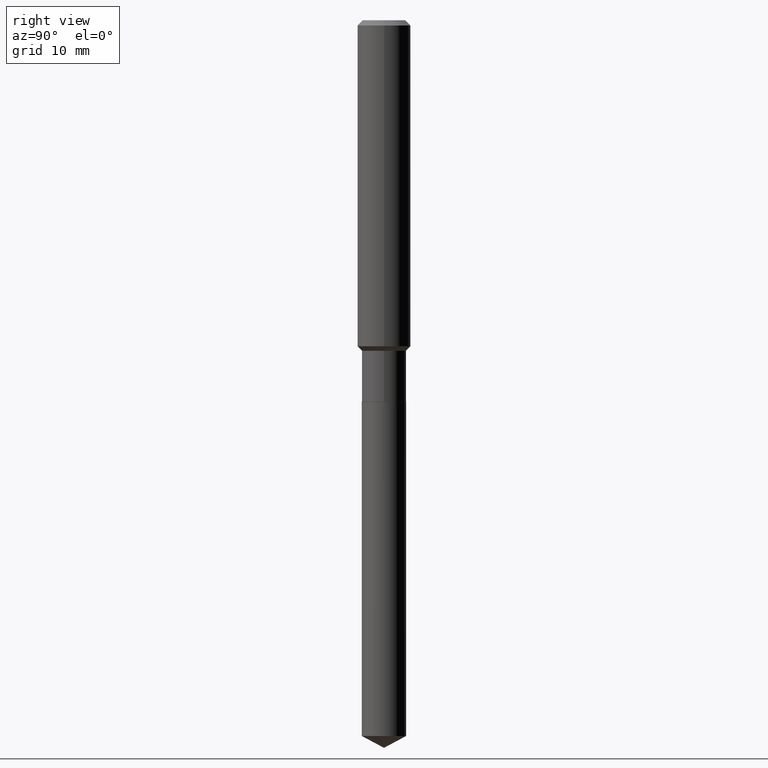
[diagram: clean part render]
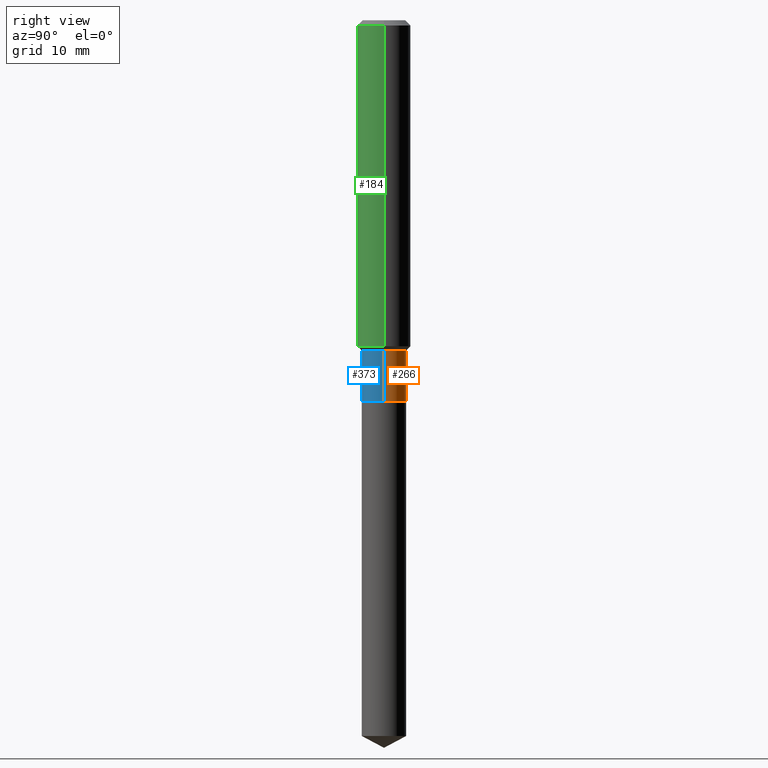
[diagram: same view with three faces highlighted in distinct colors, each labeled with its STEP entity id]
A machine part, right view with three faces highlighted in distinct colors.
Their STEP definitions:

[orange] entity #266 — the highlighted cylindrical surface (edge-blend (fillet) strip) has radius 2.5006 mm, axis along (-0, 0, 1).
#11 = EDGE_CURVE ( 'NONE', #194, #166, #454, .T. ) ;
#23 = AXIS2_PLACEMENT_3D ( 'NONE', #419, #306, #451 ) ;
#37 = EDGE_CURVE ( 'NONE', #194, #151, #369, .T. ) ;
#50 = CYLINDRICAL_SURFACE ( 'NONE', #478, 0.09844999999999998197 ) ;
#56 = DIRECTION ( 'NONE',  ( -2.445468806185136597E-29, 3.491481338843145583E-15, 1.000000000000000000 ) ) ;
#93 = ORIENTED_EDGE ( 'NONE', *, *, #11, .T. ) ;
#120 = CARTESIAN_POINT ( 'NONE',  ( -0.09844999999999999585, -4.815090877279988422E-15, -1.692400000000000126 ) ) ;
#127 = EDGE_CURVE ( 'NONE', #151, #400, #448, .T. ) ;
#138 = VECTOR ( 'NONE', #272, 39.37007874015748143 ) ;
#151 = VERTEX_POINT ( 'NONE', #458 ) ;
#161 = LINE ( 'NONE', #307, #138 ) ;
#166 = VERTEX_POINT ( 'NONE', #120 ) ;
#189 = DIRECTION ( 'NONE',  ( -2.445468806185136597E-29, 3.491481338843145583E-15, 1.000000000000000000 ) ) ;
#194 = VERTEX_POINT ( 'NONE', #197 ) ;
#197 = CARTESIAN_POINT ( 'NONE',  ( 0.09844999999999999585, -6.596455693476352920E-15, -1.692400000000000126 ) ) ;
#234 = FACE_OUTER_BOUND ( 'NONE', #278, .T. ) ;
#242 = DIRECTION ( 'NONE',  ( 1.000000000000000000, -6.982962677686266711E-15, 4.876176775795935793E-29 ) ) ;
#255 = CARTESIAN_POINT ( 'NONE',  ( 0.09844999999999998197, -6.874726756182128559E-16, 4.800596035771097813E-30 ) ) ;
#260 = EDGE_CURVE ( 'NONE', #166, #400, #161, .T. ) ;
#266 = ADVANCED_FACE ( 'NONE', ( #234 ), #50, .T. ) ;
#272 = DIRECTION ( 'NONE',  ( -2.445468806185136877E-29, 3.491481338843145188E-15, 1.000000000000000000 ) ) ;
#276 = CARTESIAN_POINT ( 'NONE',  ( -0.09844999999999995421, -4.815090877279988422E-15, -1.466500000000000137 ) ) ;
#278 = EDGE_LOOP ( 'NONE', ( #93, #435, #416, #398 ) ) ;
#294 = CARTESIAN_POINT ( 'NONE',  ( 4.138711407587726116E-29, -5.908983017858140360E-15, -1.692400000000000126 ) ) ;
#306 = DIRECTION ( 'NONE',  ( -2.445468806185136597E-29, 3.491481338843145583E-15, 1.000000000000000000 ) ) ;
#307 = CARTESIAN_POINT ( 'NONE',  ( -0.09844999999999998197, 6.995293233558185049E-16, -4.842691596355953341E-30 ) ) ;
#369 = LINE ( 'NONE', #255, #426 ) ;
#391 = CARTESIAN_POINT ( 'NONE',  ( 0.000000000000000000, 0.000000000000000000, 0.000000000000000000 ) ) ;
#398 = ORIENTED_EDGE ( 'NONE', *, *, #37, .F. ) ;
#400 = VERTEX_POINT ( 'NONE', #276 ) ;
#401 = AXIS2_PLACEMENT_3D ( 'NONE', #294, #189, #408 ) ;
#408 = DIRECTION ( 'NONE',  ( 1.000000000000000000, -6.982962677686265922E-15, 0.000000000000000000 ) ) ;
#416 = ORIENTED_EDGE ( 'NONE', *, *, #127, .F. ) ;
#419 = CARTESIAN_POINT ( 'NONE',  ( 3.586280004270503451E-29, -5.120257383413473493E-15, -1.466500000000000137 ) ) ;
#426 = VECTOR ( 'NONE', #484, 39.37007874015748143 ) ;
#435 = ORIENTED_EDGE ( 'NONE', *, *, #260, .T. ) ;
#448 = CIRCLE ( 'NONE', #23, 0.09844999999999995421 ) ;
#451 = DIRECTION ( 'NONE',  ( 1.000000000000000000, -6.982962677686269077E-15, 0.000000000000000000 ) ) ;
#454 = CIRCLE ( 'NONE', #401, 0.09844999999999999585 ) ;
#458 = CARTESIAN_POINT ( 'NONE',  ( 0.09844999999999995421, -5.807730059031686053E-15, -1.466500000000000137 ) ) ;
#478 = AXIS2_PLACEMENT_3D ( 'NONE', #391, #56, #242 ) ;
#484 = DIRECTION ( 'NONE',  ( -2.445468806185136877E-29, 3.491481338843145188E-15, 1.000000000000000000 ) ) ;

[blue] entity #373 — the highlighted cylindrical surface (edge-blend (fillet) strip) has radius 2.5006 mm, axis along (-0, 0, 1).
#14 = CYLINDRICAL_SURFACE ( 'NONE', #368, 0.09844999999999998197 ) ;
#22 = CIRCLE ( 'NONE', #247, 0.09844999999999999585 ) ;
#25 = DIRECTION ( 'NONE',  ( 1.000000000000000000, -6.982962677686269077E-15, 0.000000000000000000 ) ) ;
#28 = DIRECTION ( 'NONE',  ( -2.445468806185136597E-29, 3.491481338843145583E-15, 1.000000000000000000 ) ) ;
#36 = EDGE_LOOP ( 'NONE', ( #275, #130, #465, #101 ) ) ;
#37 = EDGE_CURVE ( 'NONE', #194, #151, #369, .T. ) ;
#61 = CIRCLE ( 'NONE', #145, 0.09844999999999995421 ) ;
#65 = EDGE_CURVE ( 'NONE', #166, #194, #22, .T. ) ;
#90 = CARTESIAN_POINT ( 'NONE',  ( 3.586280004270503451E-29, -5.120257383413473493E-15, -1.466500000000000137 ) ) ;
#101 = ORIENTED_EDGE ( 'NONE', *, *, #394, .F. ) ;
#120 = CARTESIAN_POINT ( 'NONE',  ( -0.09844999999999999585, -4.815090877279988422E-15, -1.692400000000000126 ) ) ;
#130 = ORIENTED_EDGE ( 'NONE', *, *, #65, .T. ) ;
#138 = VECTOR ( 'NONE', #272, 39.37007874015748143 ) ;
#145 = AXIS2_PLACEMENT_3D ( 'NONE', #90, #285, #25 ) ;
#151 = VERTEX_POINT ( 'NONE', #458 ) ;
#161 = LINE ( 'NONE', #307, #138 ) ;
#164 = CARTESIAN_POINT ( 'NONE',  ( 0.000000000000000000, 0.000000000000000000, 0.000000000000000000 ) ) ;
#166 = VERTEX_POINT ( 'NONE', #120 ) ;
#194 = VERTEX_POINT ( 'NONE', #197 ) ;
#197 = CARTESIAN_POINT ( 'NONE',  ( 0.09844999999999999585, -6.596455693476352920E-15, -1.692400000000000126 ) ) ;
#206 = DIRECTION ( 'NONE',  ( -2.445468806185136597E-29, 3.491481338843145583E-15, 1.000000000000000000 ) ) ;
#247 = AXIS2_PLACEMENT_3D ( 'NONE', #443, #28, #477 ) ;
#255 = CARTESIAN_POINT ( 'NONE',  ( 0.09844999999999998197, -6.874726756182128559E-16, 4.800596035771097813E-30 ) ) ;
#260 = EDGE_CURVE ( 'NONE', #166, #400, #161, .T. ) ;
#272 = DIRECTION ( 'NONE',  ( -2.445468806185136877E-29, 3.491481338843145188E-15, 1.000000000000000000 ) ) ;
#275 = ORIENTED_EDGE ( 'NONE', *, *, #260, .F. ) ;
#276 = CARTESIAN_POINT ( 'NONE',  ( -0.09844999999999995421, -4.815090877279988422E-15, -1.466500000000000137 ) ) ;
#279 = DIRECTION ( 'NONE',  ( 1.000000000000000000, -6.982962677686266711E-15, 4.876176775795935793E-29 ) ) ;
#285 = DIRECTION ( 'NONE',  ( -2.445468806185136597E-29, 3.491481338843145583E-15, 1.000000000000000000 ) ) ;
#307 = CARTESIAN_POINT ( 'NONE',  ( -0.09844999999999998197, 6.995293233558185049E-16, -4.842691596355953341E-30 ) ) ;
#368 = AXIS2_PLACEMENT_3D ( 'NONE', #164, #206, #279 ) ;
#369 = LINE ( 'NONE', #255, #426 ) ;
#373 = ADVANCED_FACE ( 'NONE', ( #395 ), #14, .T. ) ;
#394 = EDGE_CURVE ( 'NONE', #400, #151, #61, .T. ) ;
#395 = FACE_OUTER_BOUND ( 'NONE', #36, .T. ) ;
#400 = VERTEX_POINT ( 'NONE', #276 ) ;
#426 = VECTOR ( 'NONE', #484, 39.37007874015748143 ) ;
#443 = CARTESIAN_POINT ( 'NONE',  ( 4.138711407587726116E-29, -5.908983017858140360E-15, -1.692400000000000126 ) ) ;
#458 = CARTESIAN_POINT ( 'NONE',  ( 0.09844999999999995421, -5.807730059031686053E-15, -1.466500000000000137 ) ) ;
#465 = ORIENTED_EDGE ( 'NONE', *, *, #37, .T. ) ;
#477 = DIRECTION ( 'NONE',  ( 1.000000000000000000, -6.982962677686265922E-15, 0.000000000000000000 ) ) ;
#484 = DIRECTION ( 'NONE',  ( -2.445468806185136877E-29, 3.491481338843145188E-15, 1.000000000000000000 ) ) ;

[green] entity #184 — the highlighted cylindrical surface (edge-blend (fillet) strip) has radius 2.9997 mm, axis along (-0, 0, 1).
#4 = AXIS2_PLACEMENT_3D ( 'NONE', #383, #44, #42 ) ;
#24 = VECTOR ( 'NONE', #388, 39.37007874015748143 ) ;
#26 = VERTEX_POINT ( 'NONE', #449 ) ;
#32 = EDGE_LOOP ( 'NONE', ( #323, #361, #353, #171 ) ) ;
#39 = CIRCLE ( 'NONE', #351, 0.1181000000000001632 ) ;
#40 = DIRECTION ( 'NONE',  ( -2.445468806185136597E-29, 3.491481338843145583E-15, 1.000000000000000000 ) ) ;
#42 = DIRECTION ( 'NONE',  ( 1.000000000000000000, -6.982962677686266711E-15, 4.876176775795936353E-29 ) ) ;
#44 = DIRECTION ( 'NONE',  ( -2.445468806185136597E-29, 3.491481338843145583E-15, 1.000000000000000000 ) ) ;
#84 = EDGE_CURVE ( 'NONE', #26, #437, #447, .T. ) ;
#85 = CARTESIAN_POINT ( 'NONE',  ( -0.1181000000000000799, 8.391509709326788873E-16, -5.809262341591047988E-30 ) ) ;
#87 = CYLINDRICAL_SURFACE ( 'NONE', #4, 0.1181000000000000799 ) ;
#95 = CARTESIAN_POINT ( 'NONE',  ( 0.1181000000000000799, -8.246878922347486570E-16, 5.758764772215004644E-30 ) ) ;
#121 = DIRECTION ( 'NONE',  ( 1.000000000000000000, -6.982962677686270655E-15, 0.000000000000000000 ) ) ;
#126 = VERTEX_POINT ( 'NONE', #153 ) ;
#153 = CARTESIAN_POINT ( 'NONE',  ( 0.1181000000000001632, -5.876337667339954694E-15, -1.446849999999999969 ) ) ;
#168 = VERTEX_POINT ( 'NONE', #384 ) ;
#170 = AXIS2_PLACEMENT_3D ( 'NONE', #196, #40, #301 ) ;
#171 = ORIENTED_EDGE ( 'NONE', *, *, #84, .F. ) ;
#184 = ADVANCED_FACE ( 'NONE', ( #380 ), #87, .T. ) ;
#196 = CARTESIAN_POINT ( 'NONE',  ( 5.776197320209327532E-31, -8.246878922347559293E-17, -0.02362000000000014088 ) ) ;
#213 = EDGE_CURVE ( 'NONE', #168, #126, #39, .T. ) ;
#218 = EDGE_CURVE ( 'NONE', #168, #26, #270, .T. ) ;
#232 = CARTESIAN_POINT ( 'NONE',  ( 0.1180999999999999966, -9.071566814582237199E-16, -0.02362000000000014088 ) ) ;
#267 = DIRECTION ( 'NONE',  ( -2.445468806185136597E-29, 3.491481338843145583E-15, 1.000000000000000000 ) ) ;
#270 = LINE ( 'NONE', #85, #24 ) ;
#301 = DIRECTION ( 'NONE',  ( 1.000000000000000000, -6.982962677686266711E-15, 0.000000000000000000 ) ) ;
#318 = LINE ( 'NONE', #95, #412 ) ;
#323 = ORIENTED_EDGE ( 'NONE', *, *, #218, .F. ) ;
#324 = EDGE_CURVE ( 'NONE', #126, #437, #318, .T. ) ;
#351 = AXIS2_PLACEMENT_3D ( 'NONE', #421, #267, #121 ) ;
#353 = ORIENTED_EDGE ( 'NONE', *, *, #324, .T. ) ;
#361 = ORIENTED_EDGE ( 'NONE', *, *, #213, .T. ) ;
#380 = FACE_OUTER_BOUND ( 'NONE', #32, .T. ) ;
#383 = CARTESIAN_POINT ( 'NONE',  ( 0.000000000000000000, 0.000000000000000000, 0.000000000000000000 ) ) ;
#384 = CARTESIAN_POINT ( 'NONE',  ( -0.1181000000000001632, -4.212498804172525078E-15, -1.446849999999999969 ) ) ;
#388 = DIRECTION ( 'NONE',  ( -2.445468806185136877E-29, 3.491481338843145188E-15, 1.000000000000000000 ) ) ;
#412 = VECTOR ( 'NONE', #434, 39.37007874015748143 ) ;
#421 = CARTESIAN_POINT ( 'NONE',  ( 3.538226542228964985E-29, -5.051649775105204853E-15, -1.446849999999999969 ) ) ;
#434 = DIRECTION ( 'NONE',  ( -2.445468806185136877E-29, 3.491481338843145188E-15, 1.000000000000000000 ) ) ;
#437 = VERTEX_POINT ( 'NONE', #232 ) ;
#447 = CIRCLE ( 'NONE', #170, 0.1180999999999999966 ) ;
#449 = CARTESIAN_POINT ( 'NONE',  ( -0.1180999999999999966, -1.727908311231660578E-15, -0.02362000000000014088 ) ) ;